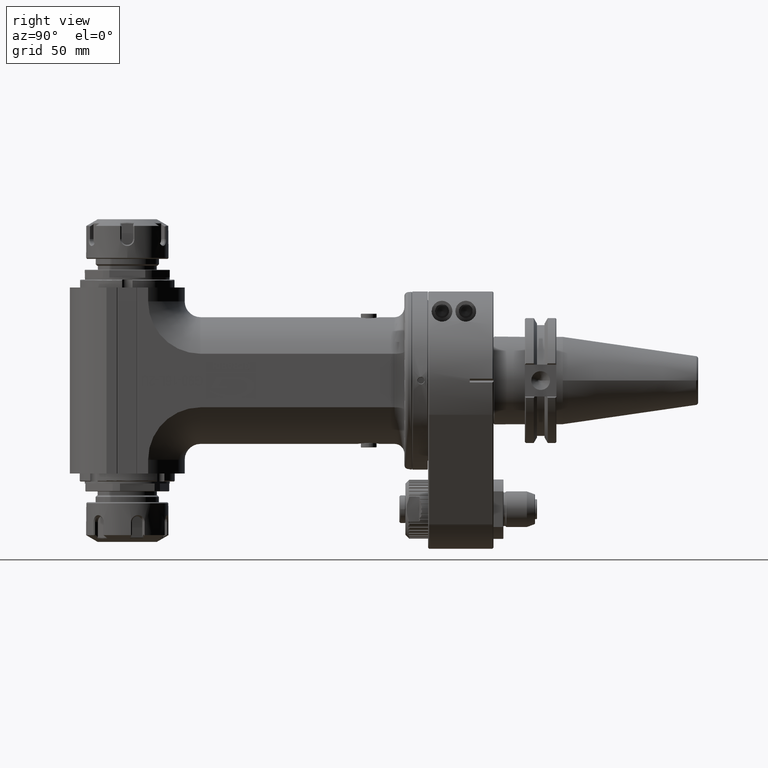
[diagram: clean part render]
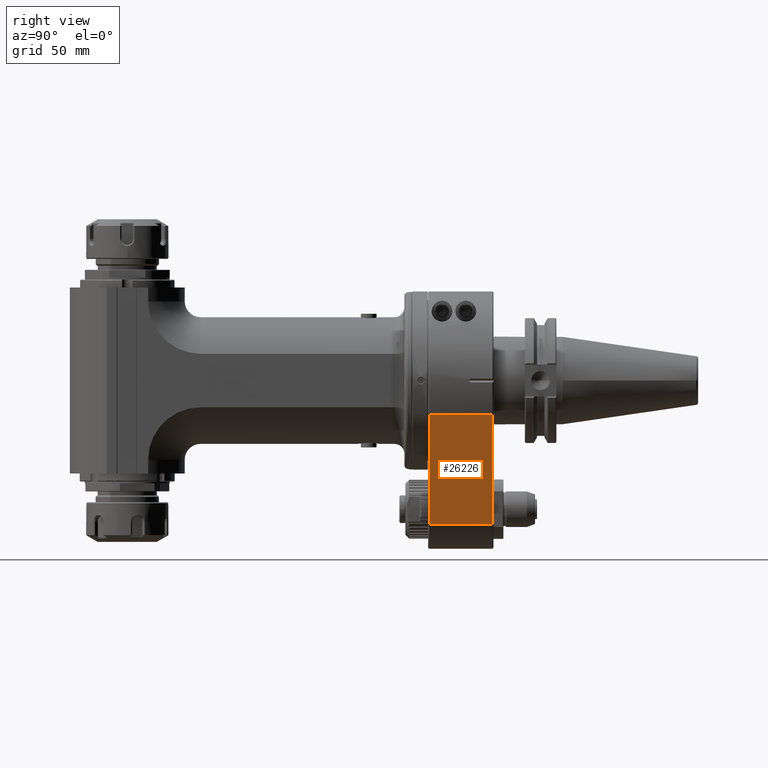
[diagram: same view with one face highlighted and labeled with its STEP entity id]
A machine part, right view. The second image highlights one B-rep face of the part: STEP entity #26226.
In plain terms, the highlighted planar face has unit normal (0.9231, 0, -0.3846).
Its self-contained STEP definition (entity closure, byte-faithful):
#3083=LINE('',#54197,#5015);
#3084=LINE('',#54201,#5016);
#3085=LINE('',#54202,#5017);
#3086=LINE('',#54203,#5018);
#5015=VECTOR('',#35391,10.);
#5016=VECTOR('',#35394,10.);
#5017=VECTOR('',#35395,32.00018990274);
#5018=VECTOR('',#35396,31.99969570828);
#7040=FACE_OUTER_BOUND('',#8689,.T.);
#8689=EDGE_LOOP('',(#23113,#23114,#23115,#23116));
#12206=VERTEX_POINT('',#52617);
#12454=VERTEX_POINT('',#54193);
#12455=VERTEX_POINT('',#54199);
#12456=VERTEX_POINT('',#54200);
#16094=EDGE_CURVE('',#12206,#12454,#3083,.T.);
#16095=EDGE_CURVE('',#12455,#12456,#3084,.T.);
#16096=EDGE_CURVE('',#12456,#12206,#3085,.T.);
#16097=EDGE_CURVE('',#12454,#12455,#3086,.T.);
#23113=ORIENTED_EDGE('',*,*,#16095,.T.);
#23114=ORIENTED_EDGE('',*,*,#16096,.T.);
#23115=ORIENTED_EDGE('',*,*,#16094,.T.);
#23116=ORIENTED_EDGE('',*,*,#16097,.T.);
#24808=PLANE('',#28864);
#26226=ADVANCED_FACE('',(#7040),#24808,.T.);
#28864=AXIS2_PLACEMENT_3D('',#54198,#35392,#35393);
#35391=DIRECTION('',(-0.384615384615406,-3.39925017305023E-14,-0.923076923076914));
#35392=DIRECTION('center_axis',(0.923076923076914,0.,-0.384615384615406));
#35393=DIRECTION('ref_axis',(-0.384615384615406,0.,-0.923076923076914));
#35394=DIRECTION('',(0.384615384615406,-3.39139971075705E-14,0.923076923076914));
#35395=DIRECTION('',(1.46770612851E-13,-1.,-1.414415739578E-13));
#35396=DIRECTION('',(-1.323398429703E-13,1.,5.506758566547E-14));
#52617=CARTESIAN_POINT('',(41.5384615225711,0.500114907696063,-17.3076923458251));
#54193=CARTESIAN_POINT('',(18.4615385976401,0.500150760657701,-72.6923076854321));
#54197=CARTESIAN_POINT('',(35.7692307692279,0.499999999996717,-31.1538461538462));
#54198=CARTESIAN_POINT('Origin',(41.53846153846,0.,-17.30769230769));
#54199=CARTESIAN_POINT('',(18.4615384158396,32.4998497148327,-72.6923076096819));
#54200=CARTESIAN_POINT('',(41.5384614538739,32.5003083543191,-17.3076923172041));
#54201=CARTESIAN_POINT('',(35.7692307692281,32.5000000000033,-31.1538461538457));
#54202=CARTESIAN_POINT('',(41.53846152241,32.50031310292,-17.30769234576));
#54203=CARTESIAN_POINT('',(18.46153848395,0.5001587565431,-72.69230763806));